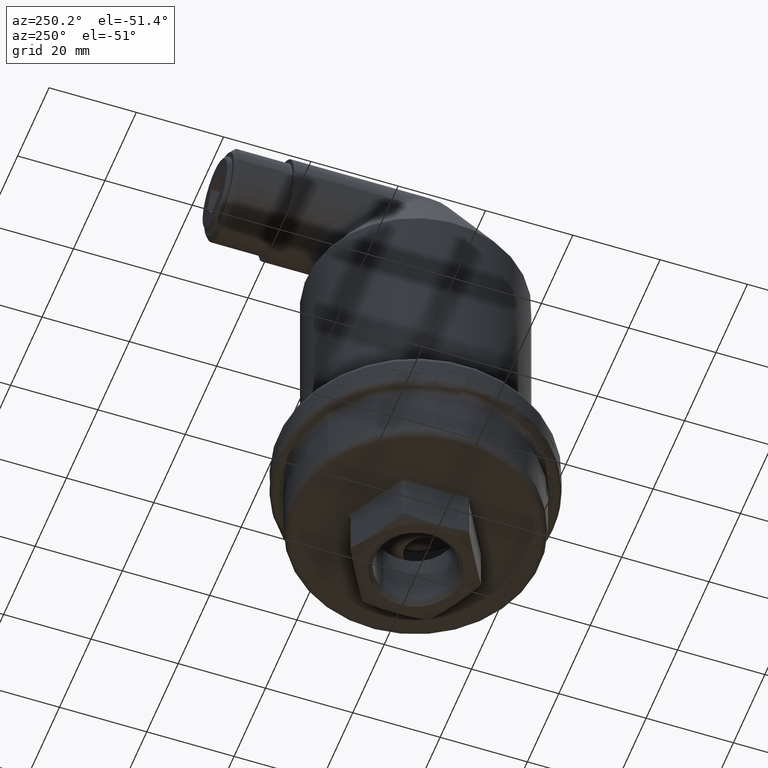
[diagram: clean part render]
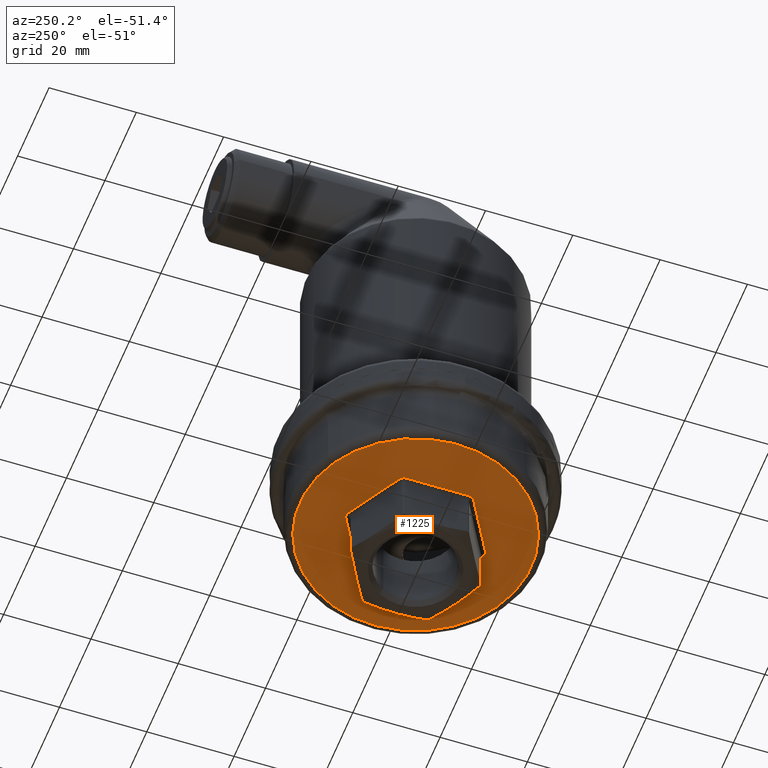
[diagram: same view with one face highlighted and labeled with its STEP entity id]
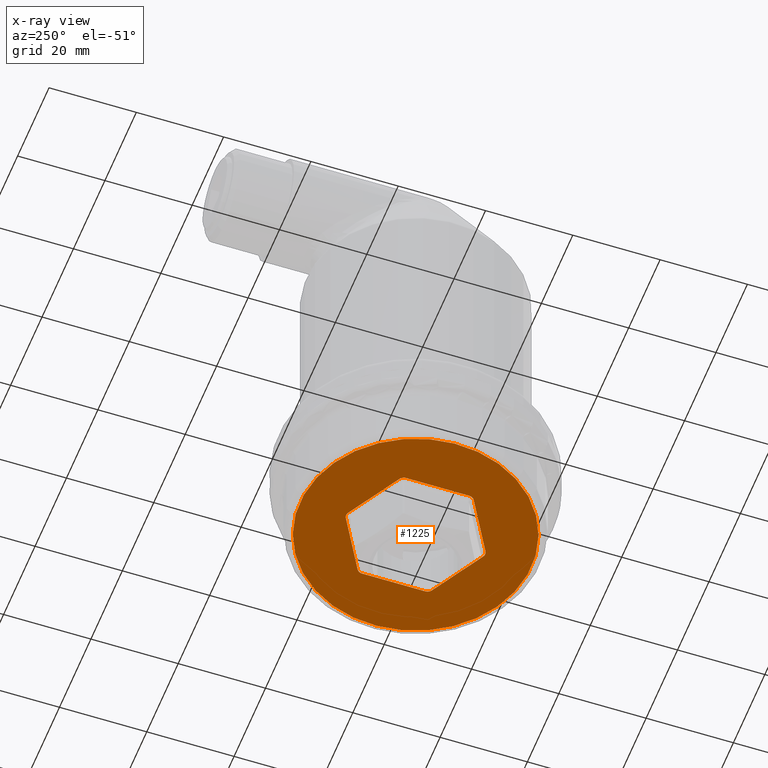
[diagram: x-ray of the same camera — body ghosted, the highlighted face saturated]
A machine part, auxiliary view. The second image highlights one B-rep face of the part: STEP entity #1225.
The next image is the same camera in x-ray: the body ghosted, the highlighted face saturated — about 0% of this face is hidden behind the body in this view.
In plain terms, the highlighted planar face has unit normal (0, 0, 1).
Its self-contained STEP definition (entity closure, byte-faithful):
#938=AXIS2_PLACEMENT_3D('Circle Axis2P3D',#936,#937,$) ;
#986=AXIS2_PLACEMENT_3D('Circle Axis2P3D',#984,#985,$) ;
#1034=AXIS2_PLACEMENT_3D('Circle Axis2P3D',#1032,#1033,$) ;
#1082=AXIS2_PLACEMENT_3D('Circle Axis2P3D',#1080,#1081,$) ;
#1130=AXIS2_PLACEMENT_3D('Circle Axis2P3D',#1128,#1129,$) ;
#1178=AXIS2_PLACEMENT_3D('Circle Axis2P3D',#1176,#1177,$) ;
#1191=AXIS2_PLACEMENT_3D('Plane Axis2P3D',#1188,#1189,#1190) ;
#1195=AXIS2_PLACEMENT_3D('Circle Axis2P3D',#1193,#1194,$) ;
#1204=AXIS2_PLACEMENT_3D('Circle Axis2P3D',#1202,#1203,$) ;
#905=CARTESIAN_POINT('Line Origine',(14.,0.,12.)) ;
#909=CARTESIAN_POINT('Vertex',(14.,7.21687855885,12.)) ;
#911=CARTESIAN_POINT('Vertex',(14.,-7.21687836487,12.)) ;
#936=CARTESIAN_POINT('Axis2P3D Location',(12.5,-7.21687836487,12.)) ;
#940=CARTESIAN_POINT('Vertex',(13.250000168,-8.51591637356,12.)) ;
#960=CARTESIAN_POINT('Line Origine',(-7.1054273576E-015,-16.1658075373,12.)) ;
#964=CARTESIAN_POINT('Vertex',(0.75,-15.7327948354,12.)) ;
#984=CARTESIAN_POINT('Axis2P3D Location',(5.55111512313E-017,-14.4337567297,12.)) ;
#988=CARTESIAN_POINT('Vertex',(-0.749999832012,-15.7327949324,12.)) ;
#1008=CARTESIAN_POINT('Line Origine',(0.,-16.1658075373,12.)) ;
#1012=CARTESIAN_POINT('Vertex',(-13.25,-8.51591647055,12.)) ;
#1032=CARTESIAN_POINT('Axis2P3D Location',(-12.5,-7.21687836487,12.)) ;
#1036=CARTESIAN_POINT('Vertex',(-14.,-7.21687855885,12.)) ;
#1056=CARTESIAN_POINT('Line Origine',(-14.,0.,12.)) ;
#1060=CARTESIAN_POINT('Vertex',(-14.,7.21687836487,12.)) ;
#1080=CARTESIAN_POINT('Axis2P3D Location',(-12.5,7.21687836487,12.)) ;
#1084=CARTESIAN_POINT('Vertex',(-13.250000168,8.51591637356,12.)) ;
#1104=CARTESIAN_POINT('Line Origine',(-7.1054273576E-015,16.1658075373,12.)) ;
#1108=CARTESIAN_POINT('Vertex',(-0.75,15.7327948354,12.)) ;
#1128=CARTESIAN_POINT('Axis2P3D Location',(1.88737914186E-015,14.4337567297,12.)) ;
#1132=CARTESIAN_POINT('Vertex',(0.749999832012,15.7327949324,12.)) ;
#1152=CARTESIAN_POINT('Line Origine',(0.,16.1658075373,12.)) ;
#1156=CARTESIAN_POINT('Vertex',(13.25,8.51591647055,12.)) ;
#1176=CARTESIAN_POINT('Axis2P3D Location',(12.5,7.21687836487,12.)) ;
#1188=CARTESIAN_POINT('Axis2P3D Location',(0.,0.,12.)) ;
#1193=CARTESIAN_POINT('Axis2P3D Location',(-1.33226762955E-015,2.22044604925E-015,12.)) ;
#1197=CARTESIAN_POINT('Vertex',(-12.704776773,23.2559378901,12.)) ;
#1199=CARTESIAN_POINT('Vertex',(12.7047768322,-23.2559378578,12.)) ;
#1202=CARTESIAN_POINT('Axis2P3D Location',(-2.77555756156E-016,-4.82947015712E-015,12.)) ;
#906=DIRECTION('Vector Direction',(0.,1.,0.)) ;
#937=DIRECTION('Axis2P3D Direction',(0.,0.,1.)) ;
#961=DIRECTION('Vector Direction',(-0.866025403784,-0.5,0.)) ;
#985=DIRECTION('Axis2P3D Direction',(0.,-0.,1.)) ;
#1009=DIRECTION('Vector Direction',(-0.866025403784,0.5,0.)) ;
#1033=DIRECTION('Axis2P3D Direction',(0.,-0.,1.)) ;
#1057=DIRECTION('Vector Direction',(0.,1.,0.)) ;
#1081=DIRECTION('Axis2P3D Direction',(0.,-0.,1.)) ;
#1105=DIRECTION('Vector Direction',(0.866025403784,0.5,0.)) ;
#1129=DIRECTION('Axis2P3D Direction',(-0.,0.,1.)) ;
#1153=DIRECTION('Vector Direction',(0.866025403784,-0.5,0.)) ;
#1177=DIRECTION('Axis2P3D Direction',(0.,0.,1.)) ;
#1189=DIRECTION('Axis2P3D Direction',(0.,0.,1.)) ;
#1190=DIRECTION('Axis2P3D XDirection',(1.,0.,0.)) ;
#1194=DIRECTION('Axis2P3D Direction',(0.,0.,1.)) ;
#1203=DIRECTION('Axis2P3D Direction',(0.,0.,1.)) ;
#907=VECTOR('Line Direction',#906,1.) ;
#962=VECTOR('Line Direction',#961,1.) ;
#1010=VECTOR('Line Direction',#1009,1.) ;
#1058=VECTOR('Line Direction',#1057,1.) ;
#1106=VECTOR('Line Direction',#1105,1.) ;
#1154=VECTOR('Line Direction',#1153,1.) ;
#1208=ORIENTED_EDGE('',*,*,#1201,.F.) ;
#1209=ORIENTED_EDGE('',*,*,#1206,.F.) ;
#1212=ORIENTED_EDGE('',*,*,#1180,.F.) ;
#1213=ORIENTED_EDGE('',*,*,#1158,.F.) ;
#1214=ORIENTED_EDGE('',*,*,#1134,.F.) ;
#1215=ORIENTED_EDGE('',*,*,#1110,.F.) ;
#1216=ORIENTED_EDGE('',*,*,#1086,.F.) ;
#1217=ORIENTED_EDGE('',*,*,#1062,.F.) ;
#1218=ORIENTED_EDGE('',*,*,#1038,.F.) ;
#1219=ORIENTED_EDGE('',*,*,#1014,.F.) ;
#1220=ORIENTED_EDGE('',*,*,#990,.F.) ;
#1221=ORIENTED_EDGE('',*,*,#966,.F.) ;
#1222=ORIENTED_EDGE('',*,*,#942,.F.) ;
#1223=ORIENTED_EDGE('',*,*,#913,.F.) ;
#1224=FACE_BOUND('',#1211,.T.) ;
#1225=ADVANCED_FACE('Hauptk\X2\00F6\X0\rper',(#1210,#1224),#1192,.F.) ;
#939=CIRCLE('generated circle',#938,1.5) ;
#987=CIRCLE('generated circle',#986,1.5) ;
#1035=CIRCLE('generated circle',#1034,1.5) ;
#1083=CIRCLE('generated circle',#1082,1.5) ;
#1131=CIRCLE('generated circle',#1130,1.5) ;
#1179=CIRCLE('generated circle',#1178,1.5) ;
#1196=CIRCLE('generated circle',#1195,26.5) ;
#1205=CIRCLE('generated circle',#1204,26.5) ;
#913=EDGE_CURVE('',#910,#912,#908,.F.) ;
#942=EDGE_CURVE('',#912,#941,#939,.F.) ;
#966=EDGE_CURVE('',#941,#965,#963,.T.) ;
#990=EDGE_CURVE('',#965,#989,#987,.F.) ;
#1014=EDGE_CURVE('',#989,#1013,#1011,.T.) ;
#1038=EDGE_CURVE('',#1013,#1037,#1035,.F.) ;
#1062=EDGE_CURVE('',#1037,#1061,#1059,.T.) ;
#1086=EDGE_CURVE('',#1061,#1085,#1083,.F.) ;
#1110=EDGE_CURVE('',#1085,#1109,#1107,.T.) ;
#1134=EDGE_CURVE('',#1109,#1133,#1131,.F.) ;
#1158=EDGE_CURVE('',#1133,#1157,#1155,.T.) ;
#1180=EDGE_CURVE('',#1157,#910,#1179,.F.) ;
#1201=EDGE_CURVE('',#1198,#1200,#1196,.T.) ;
#1206=EDGE_CURVE('',#1200,#1198,#1205,.T.) ;
#1207=EDGE_LOOP('',(#1208,#1209)) ;
#1211=EDGE_LOOP('',(#1212,#1213,#1214,#1215,#1216,#1217,#1218,#1219,#1220,#1221,#1222,#1223)) ;
#1210=FACE_OUTER_BOUND('',#1207,.T.) ;
#908=LINE('Line',#905,#907) ;
#963=LINE('Line',#960,#962) ;
#1011=LINE('Line',#1008,#1010) ;
#1059=LINE('Line',#1056,#1058) ;
#1107=LINE('Line',#1104,#1106) ;
#1155=LINE('Line',#1152,#1154) ;
#1192=PLANE('Plane',#1191) ;
#910=VERTEX_POINT('',#909) ;
#912=VERTEX_POINT('',#911) ;
#941=VERTEX_POINT('',#940) ;
#965=VERTEX_POINT('',#964) ;
#989=VERTEX_POINT('',#988) ;
#1013=VERTEX_POINT('',#1012) ;
#1037=VERTEX_POINT('',#1036) ;
#1061=VERTEX_POINT('',#1060) ;
#1085=VERTEX_POINT('',#1084) ;
#1109=VERTEX_POINT('',#1108) ;
#1133=VERTEX_POINT('',#1132) ;
#1157=VERTEX_POINT('',#1156) ;
#1198=VERTEX_POINT('',#1197) ;
#1200=VERTEX_POINT('',#1199) ;